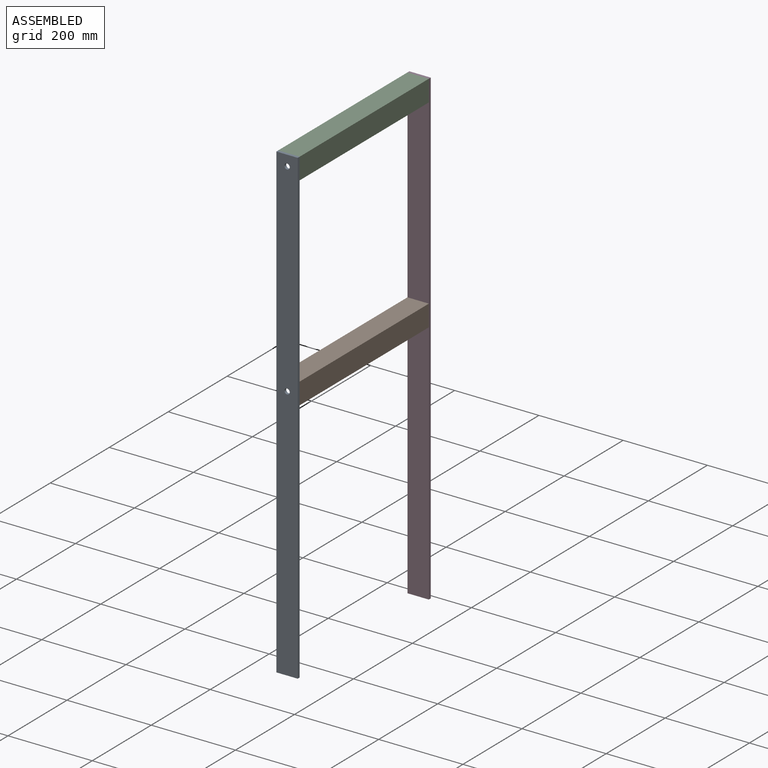
[diagram: assembled view]
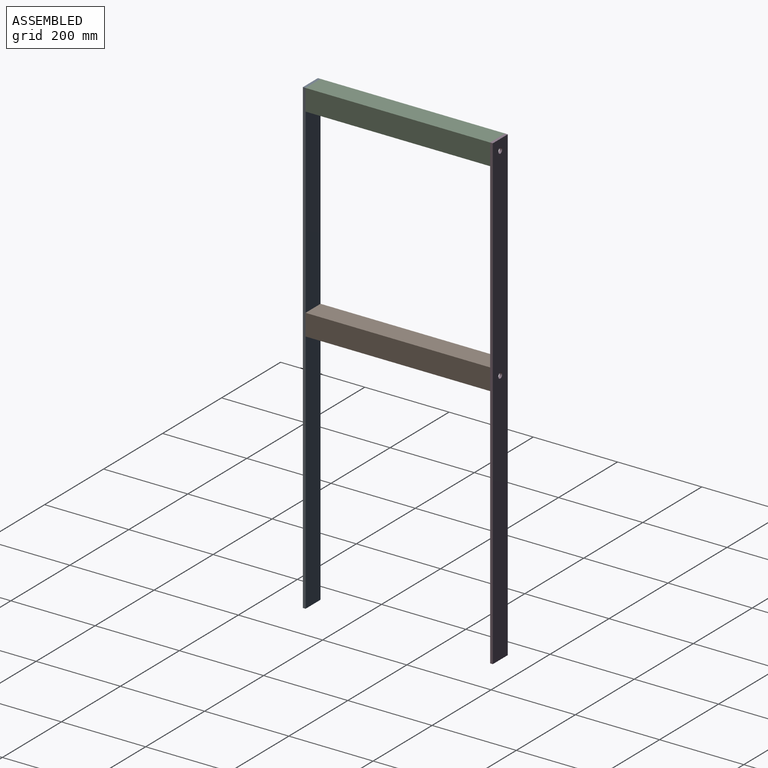
[diagram: assembled view, second angle]
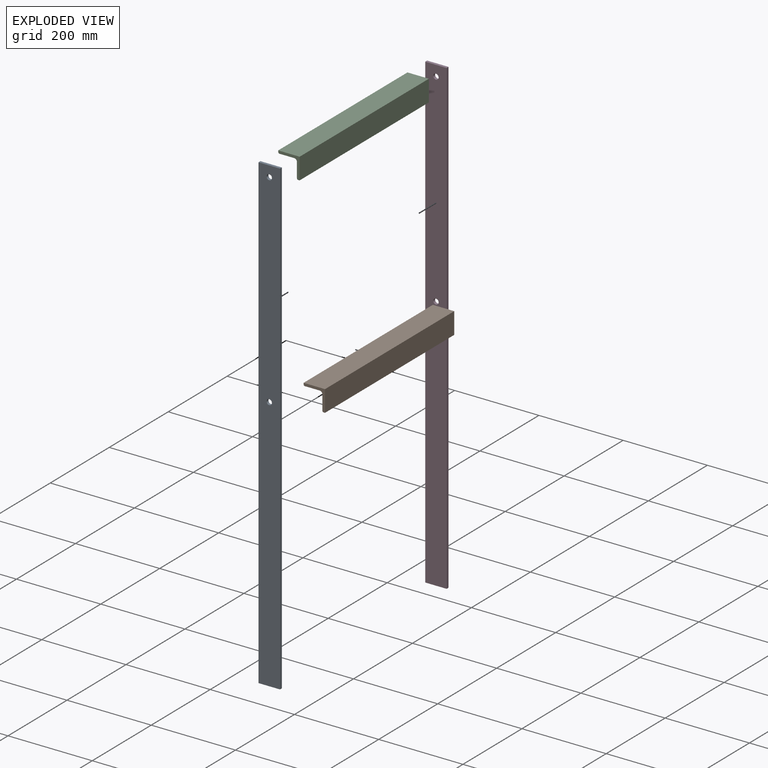
[diagram: exploded view]
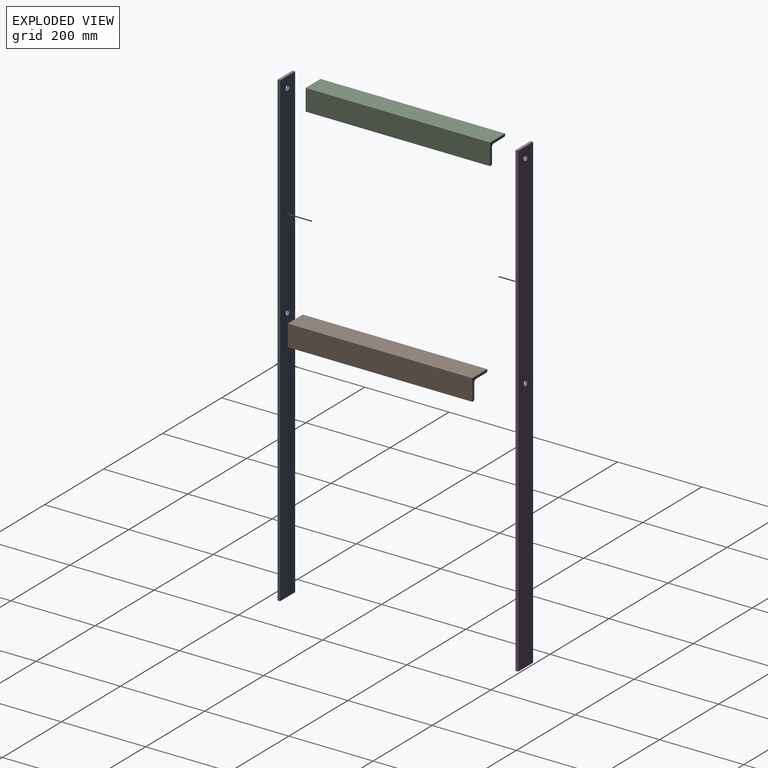
[diagram: exploded view, second angle]
ASSEMBLY  parts=4 mates=2
PART A: 8 faces, bbox 50.8x6.4x1117.6 mm
  f0: plane 1117.6x50.8mm, normal (0,1,0), area 56520.7mm2, adj f1,f3,f4,f5,f6,f7
  f1: plane 50.8x6.35mm, normal (0,0,-1), area 322.6mm2, adj f0,f2,f4,f5
  f2: plane 1117.6x50.8mm, normal (0,-1,0), area 56520.7mm2, adj f1,f3,f4,f5,f6,f7
  f3: plane 50.8x6.35mm, normal (0,0,1), area 322.6mm2, adj f0,f2,f4,f5
  f4: plane 1117.6x6.35mm, normal (-1,0,0), area 7096.8mm2, adj f0,f1,f2,f3
  f5: plane 1117.6x6.35mm, normal (1,0,0), area 7096.8mm2, adj f0,f1,f2,f3
  f6: cylinder r=6.35mm len=12.7mm, axis (0,-1,0), area 253.4mm2, adj f0,f2
  f7: cylinder r=6.35mm len=12.7mm, axis (0,-1,0), area 253.4mm2, adj f0,f2
PART B: 11 faces, bbox 50.8x438.2x50.8 mm
  f0: plane 50.8x50.8mm, normal (0,-1,0), area 609.2mm2, adj f2,f3,f4,f5,f6,f7,f8,f9
  f1: plane 50.8x50.8mm, normal (0,1,0), area 609.2mm2, adj f2,f3,f4,f5,f6,f7,f8,f9
  f2: plane 438.15x34.93mm, normal (-1,0,0), area 15302.4mm2, adj f0,f1,f3,f10
  f3: cylinder r=6.35mm len=438.15mm, axis (0,1,0), area 4370.4mm2, adj f0,f1,f2,f4
  f4: plane 438.15x34.93mm, normal (0,0,-1), area 15302.4mm2, adj f0,f1,f3,f5
  f5: cylinder r=3.17mm len=438.15mm, axis (0,1,0), area 2185.2mm2, adj f0,f1,f4,f6
  f6: plane 438.15x3.18mm, normal (-1,0,0), area 1391.1mm2, adj f0,f1,f5,f7
  f7: plane 438.15x50.8mm, normal (0,0,1), area 22258mm2, adj f0,f1,f6,f8
  f8: plane 438.15x50.8mm, normal (1,0,0), area 22258mm2, adj f0,f1,f7,f9
  f9: plane 438.15x3.18mm, normal (0,0,-1), area 1391.1mm2, adj f0,f1,f8,f10
  f10: cylinder r=3.17mm len=438.15mm, axis (0,1,0), area 2185.2mm2, adj f0,f1,f2,f9
PART C: same geometry as B
PART D: same geometry as A
PLACE A t=(0,68.58,0)mm
PLACE B t=(0,68.58,-482.6)mm
PLACE C t=(0,68.58,0)mm
PLACE D t=(0,513.08,0)mm
MATE fastened C.f1 <-> D.f2  axis (0,1,0) through (-1066.8,-248.92,5080)mm
MATE fastened C.f0 <-> A.f0  axis (0,-1,0) through (-1066.8,-687.07,5080)mm
